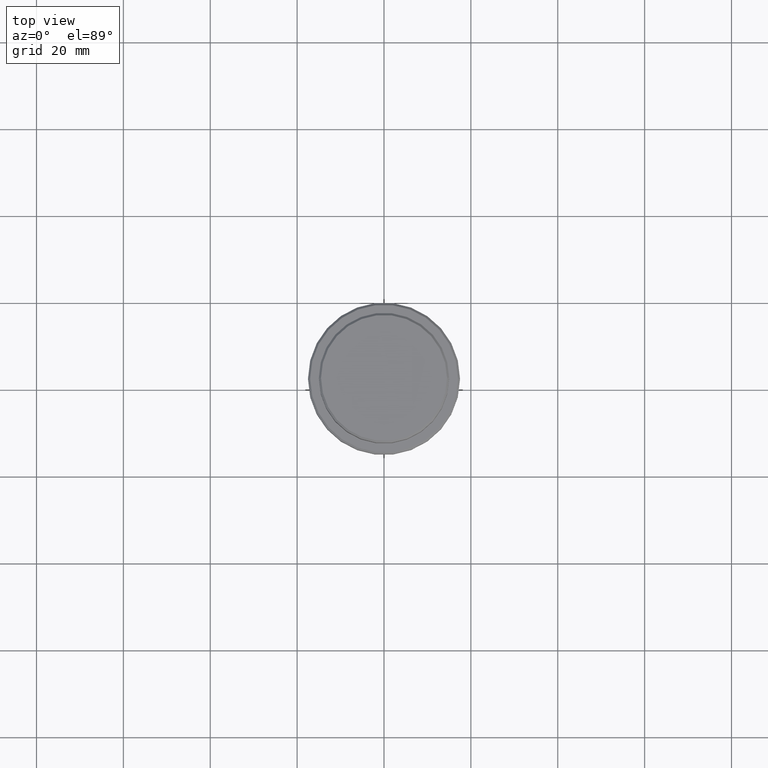
[diagram: clean part render]
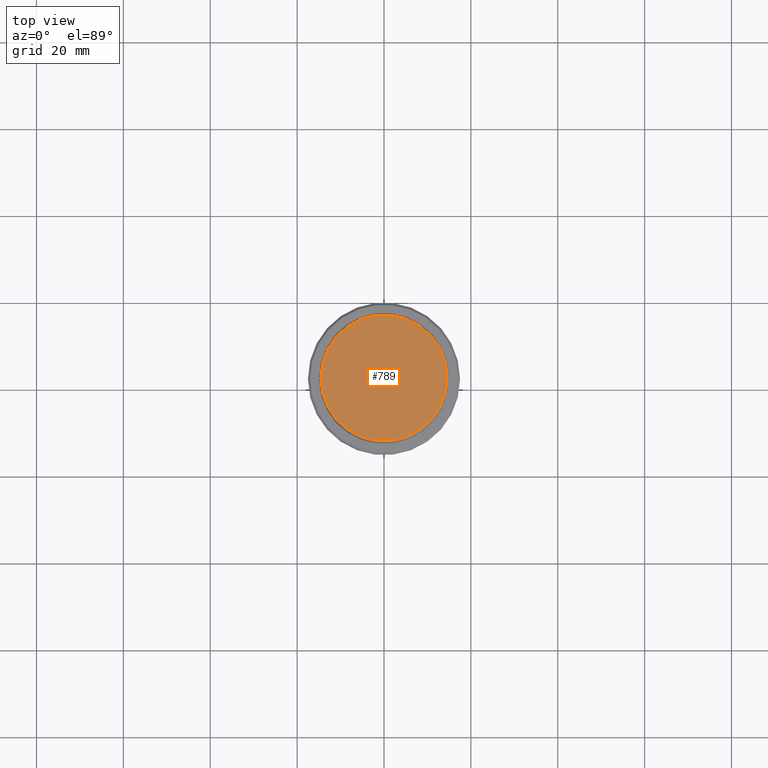
[diagram: same view with one face highlighted and labeled with its STEP entity id]
A machine part, top view. The second image highlights one B-rep face of the part: STEP entity #789.
In plain terms, the highlighted planar face has unit normal (0, -0, 1).
Its self-contained STEP definition (entity closure, byte-faithful):
#40 = FACE_OUTER_BOUND ( 'NONE', #1376, .T. ) ;
#196 = AXIS2_PLACEMENT_3D ( 'NONE', #1016, #510, #758 ) ;
#217 = CIRCLE ( 'NONE', #801, 14.49999999999995559 ) ;
#267 = VERTEX_POINT ( 'NONE', #1372 ) ;
#436 = CARTESIAN_POINT ( 'NONE',  ( 0.000000000000000000, 0.000000000000000000, 0.000000000000000000 ) ) ;
#460 = VERTEX_POINT ( 'NONE', #743 ) ;
#486 = EDGE_CURVE ( 'NONE', #460, #267, #520, .T. ) ;
#510 = DIRECTION ( 'NONE',  ( 0.000000000000000000, -0.000000000000000000, 1.000000000000000000 ) ) ;
#520 = CIRCLE ( 'NONE', #974, 14.49999999999995559 ) ;
#591 = PLANE ( 'NONE',  #196 ) ;
#609 = ORIENTED_EDGE ( 'NONE', *, *, #873, .T. ) ;
#685 = ORIENTED_EDGE ( 'NONE', *, *, #486, .T. ) ;
#727 = DIRECTION ( 'NONE',  ( 1.000000000000000000, 0.000000000000000000, 0.000000000000000000 ) ) ;
#743 = CARTESIAN_POINT ( 'NONE',  ( 14.49999999999995559, 1.806354028742343041E-15, 0.000000000000000000 ) ) ;
#758 = DIRECTION ( 'NONE',  ( 1.000000000000000000, 0.000000000000000000, 0.000000000000000000 ) ) ;
#789 = ADVANCED_FACE ( 'NONE', ( #40 ), #591, .T. ) ;
#801 = AXIS2_PLACEMENT_3D ( 'NONE', #1051, #1263, #727 ) ;
#869 = DIRECTION ( 'NONE',  ( -0.000000000000000000, -0.000000000000000000, 1.000000000000000000 ) ) ;
#873 = EDGE_CURVE ( 'NONE', #267, #460, #217, .T. ) ;
#974 = AXIS2_PLACEMENT_3D ( 'NONE', #436, #869, #1300 ) ;
#1016 = CARTESIAN_POINT ( 'NONE',  ( 0.000000000000000000, 0.000000000000000000, 0.000000000000000000 ) ) ;
#1051 = CARTESIAN_POINT ( 'NONE',  ( 0.000000000000000000, 0.000000000000000000, 0.000000000000000000 ) ) ;
#1263 = DIRECTION ( 'NONE',  ( -0.000000000000000000, -0.000000000000000000, 1.000000000000000000 ) ) ;
#1300 = DIRECTION ( 'NONE',  ( 1.000000000000000000, 0.000000000000000000, 0.000000000000000000 ) ) ;
#1372 = CARTESIAN_POINT ( 'NONE',  ( -14.49999999999995559, 0.000000000000000000, 0.000000000000000000 ) ) ;
#1376 = EDGE_LOOP ( 'NONE', ( #609, #685 ) ) ;